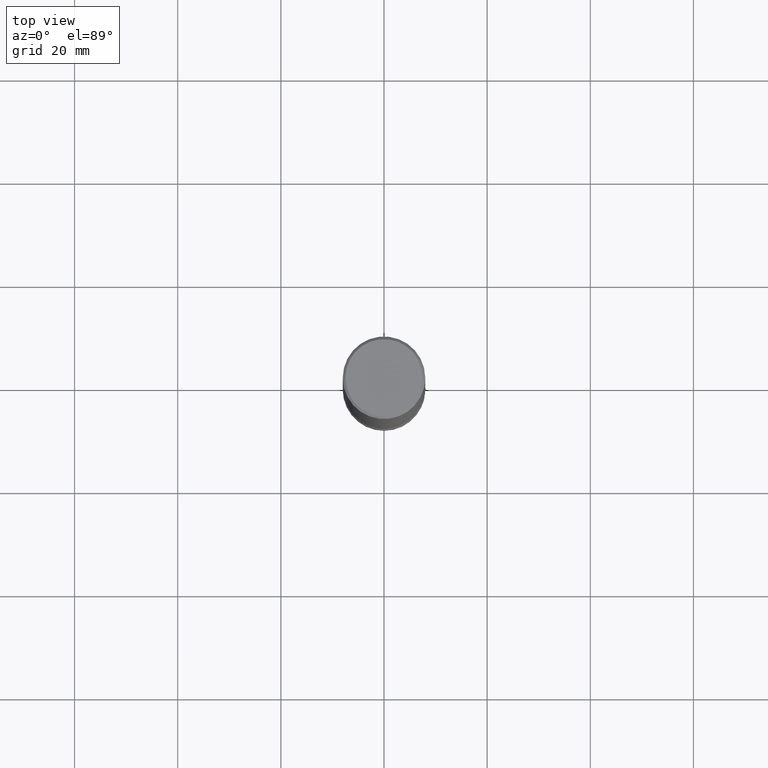
[diagram: clean part render]
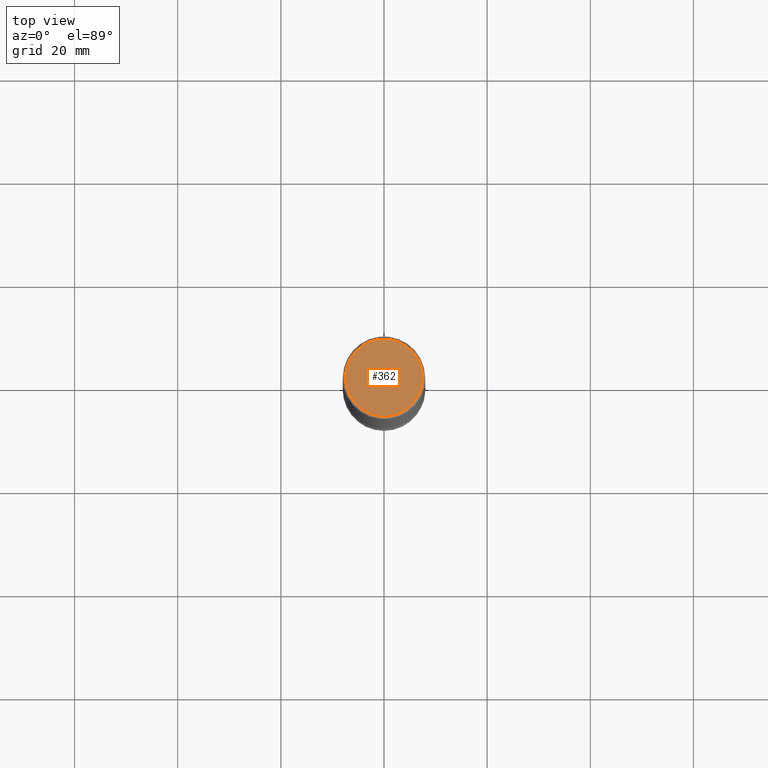
[diagram: same view with one face highlighted and labeled with its STEP entity id]
A machine part, top view. The second image highlights one B-rep face of the part: STEP entity #362.
In plain terms, the highlighted planar face has unit normal (-0, 0, 1).
Its self-contained STEP definition (entity closure, byte-faithful):
#36 = FACE_OUTER_BOUND ( 'NONE', #501, .T. ) ;
#67 = CIRCLE ( 'NONE', #216, 0.2949499999999996014 ) ;
#68 = EDGE_CURVE ( 'NONE', #489, #522, #134, .T. ) ;
#106 = ORIENTED_EDGE ( 'NONE', *, *, #68, .F. ) ;
#124 = DIRECTION ( 'NONE',  ( -2.438088387897960049E-29, 3.491481338843145188E-15, 1.000000000000000000 ) ) ;
#129 = CARTESIAN_POINT ( 'NONE',  ( 0.000000000000000000, 0.000000000000000000, 0.000000000000000000 ) ) ;
#134 = CIRCLE ( 'NONE', #252, 0.2949499999999996014 ) ;
#142 = CARTESIAN_POINT ( 'NONE',  ( -0.2949499999999996014, 2.059624841783561697E-15, -1.438228340021009396E-29 ) ) ;
#180 = DIRECTION ( 'NONE',  ( 2.445468806185136597E-29, -3.491481338843145583E-15, -1.000000000000000000 ) ) ;
#216 = AXIS2_PLACEMENT_3D ( 'NONE', #129, #302, #558 ) ;
#252 = AXIS2_PLACEMENT_3D ( 'NONE', #441, #180, #447 ) ;
#255 = PLANE ( 'NONE',  #535 ) ;
#302 = DIRECTION ( 'NONE',  ( 2.445468806185136597E-29, -3.491481338843145583E-15, -1.000000000000000000 ) ) ;
#346 = ORIENTED_EDGE ( 'NONE', *, *, #395, .F. ) ;
#347 = DIRECTION ( 'NONE',  ( 1.000000000000000000, -6.982962677686265922E-15, 4.876176775795935793E-29 ) ) ;
#362 = ADVANCED_FACE ( 'NONE', ( #36 ), #255, .T. ) ;
#395 = EDGE_CURVE ( 'NONE', #522, #489, #67, .T. ) ;
#440 = CARTESIAN_POINT ( 'NONE',  ( 0.2949499999999996014, -2.127023677808856919E-15, 1.463937372219018972E-29 ) ) ;
#441 = CARTESIAN_POINT ( 'NONE',  ( 0.000000000000000000, 0.000000000000000000, 0.000000000000000000 ) ) ;
#447 = DIRECTION ( 'NONE',  ( -1.000000000000000000, 6.982962677686266711E-15, -4.876176775795935793E-29 ) ) ;
#489 = VERTEX_POINT ( 'NONE', #142 ) ;
#501 = EDGE_LOOP ( 'NONE', ( #106, #346 ) ) ;
#519 = CARTESIAN_POINT ( 'NONE',  ( 2.059624841783561302E-15, 0.2949499999999996014, -1.025543908401684169E-15 ) ) ;
#522 = VERTEX_POINT ( 'NONE', #440 ) ;
#535 = AXIS2_PLACEMENT_3D ( 'NONE', #519, #124, #347 ) ;
#558 = DIRECTION ( 'NONE',  ( -1.000000000000000000, 6.982962677686266711E-15, -4.876176775795935793E-29 ) ) ;